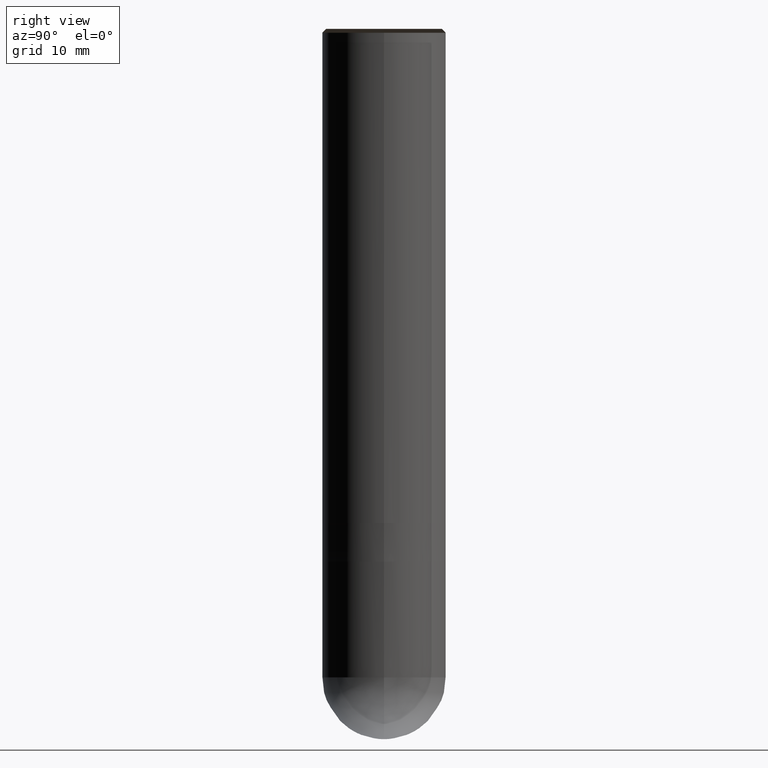
[diagram: clean part render]
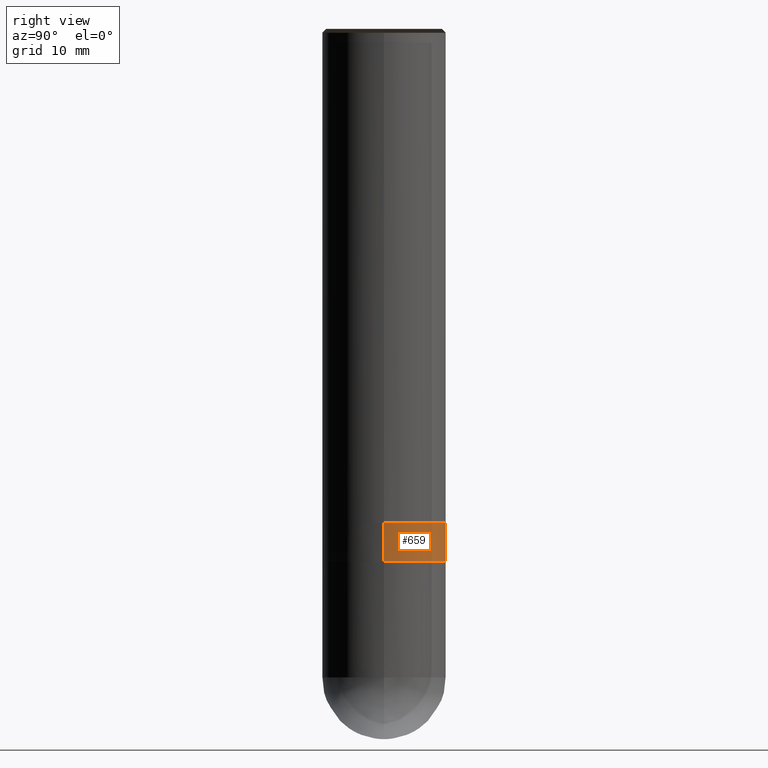
[diagram: same view with one face highlighted and labeled with its STEP entity id]
A machine part, right view. The second image highlights one B-rep face of the part: STEP entity #659.
In plain terms, the highlighted face is a freeform B-spline surface patch.
Its self-contained STEP definition (entity closure, byte-faithful):
#471=CARTESIAN_POINT('',(8.0,0.0,-5.0));
#472=CARTESIAN_POINT('',(8.0,8.0,-5.0));
#473=CARTESIAN_POINT('',(0.0,8.0,-5.0));
#474=CARTESIAN_POINT('',(-8.0,8.0,-5.0));
#475=CARTESIAN_POINT('',(-8.0,0.0,-5.0));
#486=CARTESIAN_POINT('',(8.0,0.0,0.0));
#487=CARTESIAN_POINT('',(8.0,8.0,0.0));
#488=CARTESIAN_POINT('',(0.0,8.0,0.0));
#489=CARTESIAN_POINT('',(-8.0,8.0,0.0));
#490=CARTESIAN_POINT('',(-8.0,0.0,0.0));
#640=(
BOUNDED_SURFACE()
B_SPLINE_SURFACE(1,2,(
(#471,#472,#473,#474,#475),
(#486,#487,#488,#489,#490)
), .UNSPECIFIED.,.F.,.F.,.F.)
B_SPLINE_SURFACE_WITH_KNOTS((2,2),(3,2,3),(
0.0,1.0),(
0.0,0.5,1.0), .UNSPECIFIED.)
GEOMETRIC_REPRESENTATION_ITEM()
RATIONAL_B_SPLINE_SURFACE(((1.0,0.707106781187,1.0,0.707106781187,1.0),
(1.0,0.707106781187,1.0,0.707106781187,1.0)
))
REPRESENTATION_ITEM('')
SURFACE()
);
#641=(
BOUNDED_CURVE()
B_SPLINE_CURVE(2,(#475,#474,#473,#472,#471),.UNSPECIFIED.,.F.,.F.)
B_SPLINE_CURVE_WITH_KNOTS((3,2,3),
(0.0,0.5,1.0),.UNSPECIFIED.)
CURVE()
GEOMETRIC_REPRESENTATION_ITEM()
RATIONAL_B_SPLINE_CURVE((1.0,0.707106781187,1.0,0.707106781187,1.0))
REPRESENTATION_ITEM('')
);
#642=(
BOUNDED_CURVE()
B_SPLINE_CURVE(1,(#471,#486),.UNSPECIFIED.,.F.,.F.)
B_SPLINE_CURVE_WITH_KNOTS((2,2),
(0.0,1.0),.UNSPECIFIED.)
CURVE()
GEOMETRIC_REPRESENTATION_ITEM()
RATIONAL_B_SPLINE_CURVE((1.0,1.0))
REPRESENTATION_ITEM('')
);
#643=(
BOUNDED_CURVE()
B_SPLINE_CURVE(2,(#486,#487,#488,#489,#490),.UNSPECIFIED.,.F.,.F.)
B_SPLINE_CURVE_WITH_KNOTS((3,2,3),
(0.0,0.5,1.0),.UNSPECIFIED.)
CURVE()
GEOMETRIC_REPRESENTATION_ITEM()
RATIONAL_B_SPLINE_CURVE((1.0,0.707106781187,1.0,0.707106781187,1.0))
REPRESENTATION_ITEM('')
);
#644=(
BOUNDED_CURVE()
B_SPLINE_CURVE(1,(#490,#475),.UNSPECIFIED.,.F.,.F.)
B_SPLINE_CURVE_WITH_KNOTS((2,2),
(0.0,1.0),.UNSPECIFIED.)
CURVE()
GEOMETRIC_REPRESENTATION_ITEM()
RATIONAL_B_SPLINE_CURVE((1.0,1.0))
REPRESENTATION_ITEM('')
);
#645=VERTEX_POINT('',#471);
#646=VERTEX_POINT('',#475);
#647=VERTEX_POINT('',#486);
#648=VERTEX_POINT('',#490);
#649=EDGE_CURVE('',#646,#645,#641,.T.);
#650=EDGE_CURVE('',#645,#647,#642,.T.);
#651=EDGE_CURVE('',#647,#648,#643,.T.);
#652=EDGE_CURVE('',#648,#646,#644,.T.);
#653=ORIENTED_EDGE('',*,*,#649,.T.);
#654=ORIENTED_EDGE('',*,*,#650,.T.);
#655=ORIENTED_EDGE('',*,*,#651,.T.);
#656=ORIENTED_EDGE('',*,*,#652,.T.);
#657=EDGE_LOOP('',(#653,#654,#655,#656));
#658=FACE_OUTER_BOUND('',#657,.T.);
#659=ADVANCED_FACE('',(#658),#640,.T.);